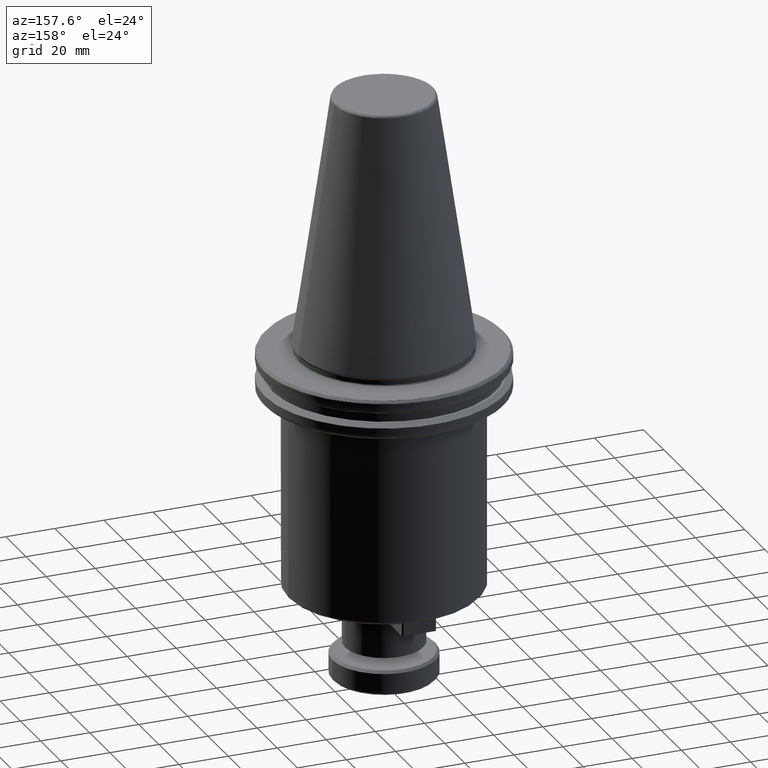
[diagram: clean part render]
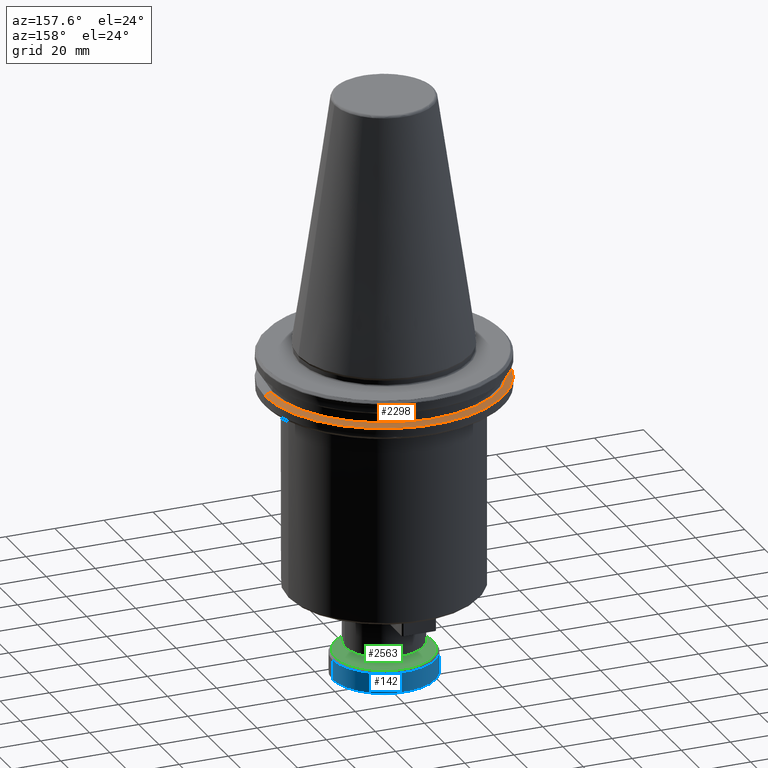
[diagram: same view with three faces highlighted in distinct colors, each labeled with its STEP entity id]
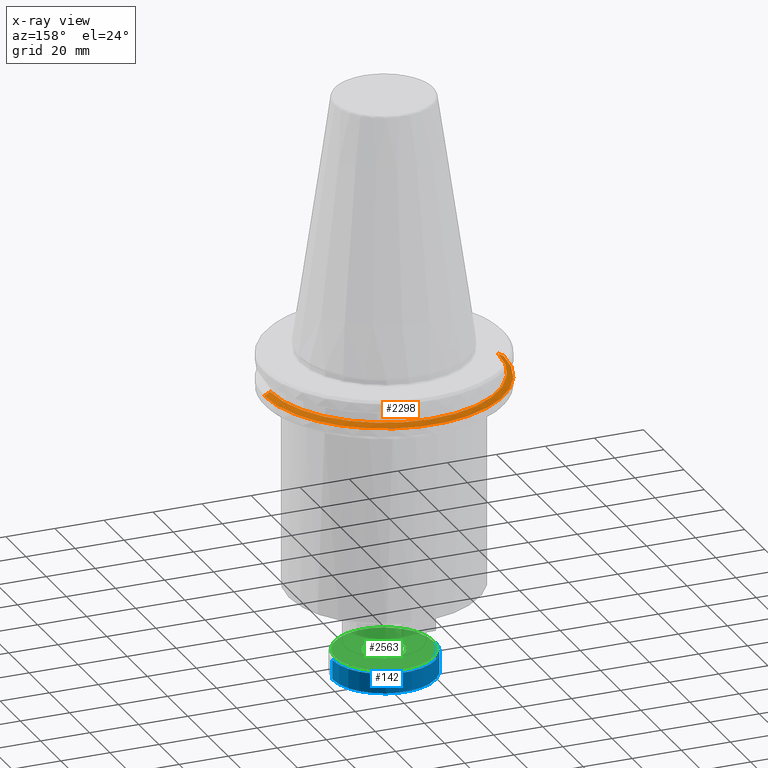
[diagram: x-ray of the same camera — body ghosted, the three highlighted faces saturated]
A machine part, auxiliary view with three faces highlighted in distinct colors.
The next image is the same camera in x-ray (body ghosted, the three faces saturated) — at least one of them is partly hidden behind the body in this view.
Their STEP definitions:

[orange] entity #2298 — the highlighted conical surface has half-angle 60 deg.
#62 = CARTESIAN_POINT ( 'NONE',  ( -48.75000000000002100, 0.0000000000000000000, -14.34759526419167100 ) ) ;
#271 = CIRCLE ( 'NONE', #2800, 46.41589653438085600 ) ;
#386 = EDGE_CURVE ( 'NONE', #3663, #939, #1995, .T. ) ;
#579 = CARTESIAN_POINT ( 'NONE',  ( 46.41589653438085600, 5.827230528940886900E-015, -13.00000000000001100 ) ) ;
#939 = VERTEX_POINT ( 'NONE', #2520 ) ;
#1048 = AXIS2_PLACEMENT_3D ( 'NONE', #1113, #3101, #1412 ) ;
#1113 = CARTESIAN_POINT ( 'NONE',  ( 0.0000000000000000000, 0.0000000000000000000, -14.34759526419166600 ) ) ;
#1370 = EDGE_CURVE ( 'NONE', #2086, #3663, #1920, .T. ) ;
#1412 = DIRECTION ( 'NONE',  ( -1.000000000000000000, 0.0000000000000000000, 0.0000000000000000000 ) ) ;
#1420 = LINE ( 'NONE', #62, #3084 ) ;
#1425 = DIRECTION ( 'NONE',  ( 0.0000000000000000000, 0.0000000000000000000, -1.000000000000000000 ) ) ;
#1613 = DIRECTION ( 'NONE',  ( -0.8660254037844392600, 0.0000000000000000000, -0.4999999999999989500 ) ) ;
#1634 = ORIENTED_EDGE ( 'NONE', *, *, #386, .T. ) ;
#1639 = VECTOR ( 'NONE', #4157, 1000.000000000000000 ) ;
#1759 = VERTEX_POINT ( 'NONE', #3431 ) ;
#1920 = LINE ( 'NONE', #2132, #1639 ) ;
#1995 = CIRCLE ( 'NONE', #1048, 48.75000000000001400 ) ;
#2086 = VERTEX_POINT ( 'NONE', #579 ) ;
#2099 = ORIENTED_EDGE ( 'NONE', *, *, #3172, .T. ) ;
#2132 = CARTESIAN_POINT ( 'NONE',  ( 48.75000000000002100, 5.970153145843349500E-015, -14.34759526419167100 ) ) ;
#2298 = ADVANCED_FACE ( 'NONE', ( #3999 ), #2799, .T. ) ;
#2361 = ORIENTED_EDGE ( 'NONE', *, *, #2600, .F. ) ;
#2434 = CARTESIAN_POINT ( 'NONE',  ( 0.0000000000000000000, 0.0000000000000000000, -14.34759526419167100 ) ) ;
#2520 = CARTESIAN_POINT ( 'NONE',  ( -48.75000000000001400, 5.970153145843347900E-015, -14.34759526419166600 ) ) ;
#2600 = EDGE_CURVE ( 'NONE', #1759, #939, #1420, .T. ) ;
#2799 = CONICAL_SURFACE ( 'NONE', #4145, 48.75000000000002100, 1.047197551196599000 ) ;
#2800 = AXIS2_PLACEMENT_3D ( 'NONE', #3535, #1425, #3857 ) ;
#3084 = VECTOR ( 'NONE', #1613, 1000.000000000000000 ) ;
#3101 = DIRECTION ( 'NONE',  ( -0.0000000000000000000, -0.0000000000000000000, 1.000000000000000000 ) ) ;
#3172 = EDGE_CURVE ( 'NONE', #1759, #2086, #271, .T. ) ;
#3431 = CARTESIAN_POINT ( 'NONE',  ( -46.41589653438085600, 0.0000000000000000000, -13.00000000000001100 ) ) ;
#3535 = CARTESIAN_POINT ( 'NONE',  ( 0.0000000000000000000, 0.0000000000000000000, -13.00000000000001100 ) ) ;
#3549 = DIRECTION ( 'NONE',  ( -1.000000000000000000, 0.0000000000000000000, 0.0000000000000000000 ) ) ;
#3624 = DIRECTION ( 'NONE',  ( 0.0000000000000000000, 0.0000000000000000000, -1.000000000000000000 ) ) ;
#3663 = VERTEX_POINT ( 'NONE', #4294 ) ;
#3857 = DIRECTION ( 'NONE',  ( -1.000000000000000000, 0.0000000000000000000, 0.0000000000000000000 ) ) ;
#3999 = FACE_OUTER_BOUND ( 'NONE', #4062, .T. ) ;
#4062 = EDGE_LOOP ( 'NONE', ( #2099, #4318, #1634, #2361 ) ) ;
#4145 = AXIS2_PLACEMENT_3D ( 'NONE', #2434, #3624, #3549 ) ;
#4157 = DIRECTION ( 'NONE',  ( 0.8660254037844392600, 1.060575238724907700E-016, -0.4999999999999989500 ) ) ;
#4294 = CARTESIAN_POINT ( 'NONE',  ( 48.75000000000001400, 0.0000000000000000000, -14.34759526419166600 ) ) ;
#4318 = ORIENTED_EDGE ( 'NONE', *, *, #1370, .T. ) ;

[blue] entity #142 — the highlighted cylindrical surface (partial cylindrical patch) has radius 21 mm, axis along (0, 0, 1).
#51 = CARTESIAN_POINT ( 'NONE',  ( 20.99999999999999600, 0.0000000000000000000, 0.0000000000000000000 ) ) ;
#139 = ORIENTED_EDGE ( 'NONE', *, *, #923, .F. ) ;
#142 = ADVANCED_FACE ( 'NONE', ( #240 ), #728, .T. ) ;
#186 = LINE ( 'NONE', #2511, #193 ) ;
#193 = VECTOR ( 'NONE', #4218, 1000.000000000000000 ) ;
#232 = CARTESIAN_POINT ( 'NONE',  ( 0.0000000000000000000, 0.0000000000000000000, -128.0000000000000000 ) ) ;
#240 = FACE_OUTER_BOUND ( 'NONE', #4266, .T. ) ;
#331 = DIRECTION ( 'NONE',  ( 0.0000000000000000000, 0.0000000000000000000, 1.000000000000000000 ) ) ;
#339 = ORIENTED_EDGE ( 'NONE', *, *, #2412, .F. ) ;
#481 = VERTEX_POINT ( 'NONE', #3142 ) ;
#503 = EDGE_CURVE ( 'NONE', #481, #663, #186, .T. ) ;
#542 = DIRECTION ( 'NONE',  ( -1.000000000000000000, 0.0000000000000000000, 0.0000000000000000000 ) ) ;
#663 = VERTEX_POINT ( 'NONE', #1547 ) ;
#674 = VERTEX_POINT ( 'NONE', #3969 ) ;
#728 = CYLINDRICAL_SURFACE ( 'NONE', #1823, 20.99999999999999600 ) ;
#836 = LINE ( 'NONE', #51, #937 ) ;
#870 = CARTESIAN_POINT ( 'NONE',  ( 21.00000000000000000, 0.0000000000000000000, -128.0000000000000000 ) ) ;
#923 = EDGE_CURVE ( 'NONE', #674, #2599, #836, .T. ) ;
#937 = VECTOR ( 'NONE', #2495, 1000.000000000000000 ) ;
#1024 = DIRECTION ( 'NONE',  ( 1.000000000000000000, 0.0000000000000000000, 0.0000000000000000000 ) ) ;
#1129 = DIRECTION ( 'NONE',  ( -0.0000000000000000000, -0.0000000000000000000, 1.000000000000000000 ) ) ;
#1507 = DIRECTION ( 'NONE',  ( 0.0000000000000000000, 0.0000000000000000000, 1.000000000000000000 ) ) ;
#1516 = CARTESIAN_POINT ( 'NONE',  ( 0.0000000000000000000, 0.0000000000000000000, 0.0000000000000000000 ) ) ;
#1547 = CARTESIAN_POINT ( 'NONE',  ( -21.00000000000000000, 2.571758278209441700E-015, -128.0000000000000000 ) ) ;
#1770 = AXIS2_PLACEMENT_3D ( 'NONE', #232, #1129, #542 ) ;
#1823 = AXIS2_PLACEMENT_3D ( 'NONE', #1516, #1507, #1024 ) ;
#2412 = EDGE_CURVE ( 'NONE', #2599, #663, #3698, .T. ) ;
#2417 = CARTESIAN_POINT ( 'NONE',  ( 0.0000000000000000000, 0.0000000000000000000, -136.0000000000000000 ) ) ;
#2495 = DIRECTION ( 'NONE',  ( 0.0000000000000000000, 0.0000000000000000000, 1.000000000000000000 ) ) ;
#2511 = CARTESIAN_POINT ( 'NONE',  ( -20.99999999999999600, 2.571758278209441300E-015, 0.0000000000000000000 ) ) ;
#2599 = VERTEX_POINT ( 'NONE', #870 ) ;
#2794 = DIRECTION ( 'NONE',  ( 1.000000000000000000, 0.0000000000000000000, 0.0000000000000000000 ) ) ;
#2995 = EDGE_CURVE ( 'NONE', #674, #481, #3466, .T. ) ;
#3142 = CARTESIAN_POINT ( 'NONE',  ( -20.99999999999999600, 2.571758278209441300E-015, -136.0000000000000000 ) ) ;
#3466 = CIRCLE ( 'NONE', #4422, 20.99999999999999600 ) ;
#3698 = CIRCLE ( 'NONE', #1770, 21.00000000000000400 ) ;
#3969 = CARTESIAN_POINT ( 'NONE',  ( 20.99999999999999600, 0.0000000000000000000, -136.0000000000000000 ) ) ;
#3981 = ORIENTED_EDGE ( 'NONE', *, *, #503, .T. ) ;
#4105 = ORIENTED_EDGE ( 'NONE', *, *, #2995, .T. ) ;
#4218 = DIRECTION ( 'NONE',  ( 0.0000000000000000000, 0.0000000000000000000, 1.000000000000000000 ) ) ;
#4266 = EDGE_LOOP ( 'NONE', ( #4105, #3981, #339, #139 ) ) ;
#4422 = AXIS2_PLACEMENT_3D ( 'NONE', #2417, #331, #2794 ) ;

[green] entity #2563 — the highlighted planar face has unit normal (0, 0, 1).
#2 = DIRECTION ( 'NONE',  ( 0.0000000000000000000, 0.0000000000000000000, 1.000000000000000000 ) ) ;
#70 = CARTESIAN_POINT ( 'NONE',  ( -8.500000000000000000, 1.318459257955872900E-015, -127.0000000000000000 ) ) ;
#79 = ORIENTED_EDGE ( 'NONE', *, *, #1700, .T. ) ;
#247 = DIRECTION ( 'NONE',  ( -0.0000000000000000000, -0.0000000000000000000, 1.000000000000000000 ) ) ;
#268 = CARTESIAN_POINT ( 'NONE',  ( -7.928379597049149300, 3.064629149131560500, -126.9999999999999700 ) ) ;
#278 = CARTESIAN_POINT ( 'NONE',  ( -4.893998744694945600, 6.950149218417778700, -126.9999999999999700 ) ) ;
#294 = CARTESIAN_POINT ( 'NONE',  ( -1.783187936033711100, 8.311361685090908200, -127.0000000000000000 ) ) ;
#311 = CARTESIAN_POINT ( 'NONE',  ( 1.817580703122244000, 8.307983328475952300, -127.0000000000000300 ) ) ;
#313 = PLANE ( 'NONE',  #4293 ) ;
#326 = CARTESIAN_POINT ( 'NONE',  ( 5.142155221134818700, 6.793583944551599500, -127.0000000000000300 ) ) ;
#335 = CARTESIAN_POINT ( 'NONE',  ( 7.876547097709166500, 3.195507051172989500, -126.9999999999999700 ) ) ;
#412 = DIRECTION ( 'NONE',  ( -0.0000000000000000000, -0.0000000000000000000, 1.000000000000000000 ) ) ;
#426 = CARTESIAN_POINT ( 'NONE',  ( 0.0000000000000000000, 0.0000000000000000000, -127.0000000000000000 ) ) ;
#476 = EDGE_LOOP ( 'NONE', ( #1642, #79 ) ) ;
#528 = EDGE_LOOP ( 'NONE', ( #1365, #1480 ) ) ;
#545 = DIRECTION ( 'NONE',  ( 1.000000000000000000, 0.0000000000000000000, -0.0000000000000000000 ) ) ;
#607 = CARTESIAN_POINT ( 'NONE',  ( -7.797549277625415200, 3.395722105694082500, -127.0000000000000300 ) ) ;
#624 = CARTESIAN_POINT ( 'NONE',  ( -4.711348703082473200, 7.075186736936474000, -127.0000000000000000 ) ) ;
#641 = CARTESIAN_POINT ( 'NONE',  ( -1.614434768017713600, 8.345343225972254000, -127.0000000000000300 ) ) ;
#652 = CARTESIAN_POINT ( 'NONE',  ( 2.676814450621062000, 8.069614187851694700, -127.0000000000000300 ) ) ;
#668 = CARTESIAN_POINT ( 'NONE',  ( 6.217760564397650600, 5.803080985853581500, -126.9999999999999700 ) ) ;
#687 = CARTESIAN_POINT ( 'NONE',  ( 8.004622828340597400, 2.872663059698152800, -127.0000000000000000 ) ) ;
#723 = CIRCLE ( 'NONE', #2490, 20.00000000000000400 ) ;
#812 = CARTESIAN_POINT ( 'NONE',  ( 20.00000000000000400, 2.510525938252074500E-015, -127.0000000000000000 ) ) ;
#854 = CARTESIAN_POINT ( 'NONE',  ( 0.0000000000000000000, -8.500000000000000000, -127.0000000000000000 ) ) ;
#881 = DIRECTION ( 'NONE',  ( -1.000000000000000000, 0.0000000000000000000, 0.0000000000000000000 ) ) ;
#934 = CARTESIAN_POINT ( 'NONE',  ( 8.500000000000000000, 0.0000000000000000000, -127.0000000000000000 ) ) ;
#946 = CARTESIAN_POINT ( 'NONE',  ( -8.396897607291425200, 1.322720827863058700, -127.0000000000000600 ) ) ;
#964 = CARTESIAN_POINT ( 'NONE',  ( -7.378379923617629300, 4.224513483193470100, -127.0000000000000000 ) ) ;
#976 = CARTESIAN_POINT ( 'NONE',  ( -4.040512574550139600, 7.487979943522000200, -127.0000000000000300 ) ) ;
#989 = CARTESIAN_POINT ( 'NONE',  ( -1.035816813050116000, 8.452666083387255100, -127.0000000000000000 ) ) ;
#1007 = CARTESIAN_POINT ( 'NONE',  ( 3.000284323785150000, 7.952956208293382900, -126.9999999999999700 ) ) ;
#1025 = CARTESIAN_POINT ( 'NONE',  ( 6.823084891243332200, 5.072886587586666900, -127.0000000000000000 ) ) ;
#1036 = CARTESIAN_POINT ( 'NONE',  ( 8.259026333416413100, 2.018039557837220300, -127.0000000000000000 ) ) ;
#1062 = VERTEX_POINT ( 'NONE', #812 ) ;
#1231 = EDGE_CURVE ( 'NONE', #4002, #4167, #3369, .T. ) ;
#1282 = CARTESIAN_POINT ( 'NONE',  ( -8.369736224266045400, 1.482744684832950400, -127.0000000000000000 ) ) ;
#1292 = CARTESIAN_POINT ( 'NONE',  ( -7.192286245344806900, 4.530583542576851900, -126.9999999999999700 ) ) ;
#1308 = CARTESIAN_POINT ( 'NONE',  ( -3.361156064153943700, 7.807809836553510700, -127.0000000000000300 ) ) ;
#1321 = CARTESIAN_POINT ( 'NONE',  ( 0.2597743522040911200, 8.500016208201033800, -126.9999999999999700 ) ) ;
#1329 = CARTESIAN_POINT ( 'NONE',  ( -20.00000000000000400, 0.0000000000000000000, -127.0000000000000000 ) ) ;
#1333 = CARTESIAN_POINT ( 'NONE',  ( 3.095440396973776000, 7.916406969206263100, -127.0000000000000000 ) ) ;
#1345 = CARTESIAN_POINT ( 'NONE',  ( 7.033399776736766600, 4.773540549319459800, -127.0000000000000000 ) ) ;
#1365 = ORIENTED_EDGE ( 'NONE', *, *, #2426, .T. ) ;
#1367 = CARTESIAN_POINT ( 'NONE',  ( 8.331990669844216800, 1.682006765309884900, -127.0000000000000000 ) ) ;
#1480 = ORIENTED_EDGE ( 'NONE', *, *, #2764, .T. ) ;
#1566 = FACE_BOUND ( 'NONE', #476, .T. ) ;
#1603 = CARTESIAN_POINT ( 'NONE',  ( -8.482261953942609600, 0.6480941902355981100, -127.0000000000000000 ) ) ;
#1618 = CARTESIAN_POINT ( 'NONE',  ( -8.307983328476670000, 1.817580703120498200, -127.0000000000000300 ) ) ;
#1638 = CARTESIAN_POINT ( 'NONE',  ( -6.793583944550206900, 5.142155221136209600, -127.0000000000000000 ) ) ;
#1642 = ORIENTED_EDGE ( 'NONE', *, *, #1231, .T. ) ;
#1656 = CARTESIAN_POINT ( 'NONE',  ( -3.195507051173887000, 7.876547097708620300, -126.9999999999999700 ) ) ;
#1671 = CARTESIAN_POINT ( 'NONE',  ( 1.098185498087159700, 8.430547259539080700, -127.0000000000000000 ) ) ;
#1689 = CARTESIAN_POINT ( 'NONE',  ( 3.786219645568159800, 7.619718477363205600, -127.0000000000000000 ) ) ;
#1700 = EDGE_CURVE ( 'NONE', #4167, #4002, #2989, .T. ) ;
#1708 = CARTESIAN_POINT ( 'NONE',  ( 7.271562279049070400, 4.411019706534952800, -127.0000000000000300 ) ) ;
#1722 = CARTESIAN_POINT ( 'NONE',  ( 8.352182949521752800, 1.578626225734799600, -127.0000000000000000 ) ) ;
#1993 = CARTESIAN_POINT ( 'NONE',  ( -8.069614187852636200, 2.676814450618771400, -127.0000000000000000 ) ) ;
#2006 = CARTESIAN_POINT ( 'NONE',  ( -5.803080985854006900, 6.217760564397228700, -126.9999999999999700 ) ) ;
#2020 = CARTESIAN_POINT ( 'NONE',  ( -2.872663059703036500, 8.004622828339442700, -127.0000000000000300 ) ) ;
#2043 = CARTESIAN_POINT ( 'NONE',  ( 1.418714265012801700, 8.380829974019571100, -127.0000000000000000 ) ) ;
#2057 = CARTESIAN_POINT ( 'NONE',  ( 4.408649422410217500, 7.267691410562047600, -127.0000000000000000 ) ) ;
#2070 = CARTESIAN_POINT ( 'NONE',  ( 7.706809493146005600, 3.590557665654126500, -127.0000000000000000 ) ) ;
#2092 = CARTESIAN_POINT ( 'NONE',  ( 8.499999999999996400, 0.5200794799637127300, -126.9999999999999400 ) ) ;
#2326 = CARTESIAN_POINT ( 'NONE',  ( 0.0000000000000000000, 0.0000000000000000000, -127.0000000000000000 ) ) ;
#2333 = CARTESIAN_POINT ( 'NONE',  ( -8.500000000000003600, 0.2598619697415395200, -127.0000000000000300 ) ) ;
#2346 = CARTESIAN_POINT ( 'NONE',  ( -7.952956208293710600, 3.000284323784346200, -127.0000000000000000 ) ) ;
#2366 = CARTESIAN_POINT ( 'NONE',  ( -5.072886587587222900, 6.823084891242778800, -127.0000000000000000 ) ) ;
#2381 = CARTESIAN_POINT ( 'NONE',  ( -2.018039557843631600, 8.259026333414899700, -127.0000000000000300 ) ) ;
#2394 = CARTESIAN_POINT ( 'NONE',  ( 1.512824100800854500, 8.364359669423997400, -126.9999999999999700 ) ) ;
#2404 = CARTESIAN_POINT ( 'NONE',  ( 4.589923864103573300, 7.154571582959405900, -127.0000000000000300 ) ) ;
#2426 = EDGE_CURVE ( 'NONE', #2946, #1062, #723, .T. ) ;
#2428 = CARTESIAN_POINT ( 'NONE',  ( 7.849292605573340100, 3.261893060565900900, -126.9999999999999700 ) ) ;
#2490 = AXIS2_PLACEMENT_3D ( 'NONE', #426, #412, #881 ) ;
#2563 = ADVANCED_FACE ( 'NONE', ( #1566, #3224 ), #313, .T. ) ;
#2693 = DIRECTION ( 'NONE',  ( -1.000000000000000000, 0.0000000000000000000, 0.0000000000000000000 ) ) ;
#2700 = CARTESIAN_POINT ( 'NONE',  ( -8.500000000000000000, 1.318459257955872900E-015, -127.0000000000000000 ) ) ;
#2722 = CARTESIAN_POINT ( 'NONE',  ( -7.916406969206314600, 3.095440396973649500, -127.0000000000000000 ) ) ;
#2737 = CARTESIAN_POINT ( 'NONE',  ( -4.773540549319656100, 7.033399776736569500, -126.9999999999999700 ) ) ;
#2749 = CARTESIAN_POINT ( 'NONE',  ( -1.682006765312136200, 8.331990669843691000, -126.9999999999999700 ) ) ;
#2764 = EDGE_CURVE ( 'NONE', #1062, #2946, #3278, .T. ) ;
#2768 = CARTESIAN_POINT ( 'NONE',  ( 2.218516657058087600, 8.213537217113476200, -127.0000000000000000 ) ) ;
#2787 = CARTESIAN_POINT ( 'NONE',  ( 5.595701791461660700, 6.425060948549798900, -127.0000000000000000 ) ) ;
#2798 = CARTESIAN_POINT ( 'NONE',  ( 7.890522775366915400, 3.160822777723137500, -126.9999999999999700 ) ) ;
#2946 = VERTEX_POINT ( 'NONE', #1329 ) ;
#2989 = B_SPLINE_CURVE_WITH_KNOTS ( 'NONE', 3,
 ( #4223, #4209, #4198, #4192, #4184, #4175, #4169, #4155, #4147, #4143, #4135, #4133, #4126, #4119, #4109, #4099, #4091, #4087, #4080, #4076, #4069, #4050, #4046, #4037, #4027, #4015, #3997, #3994, #3989, #3985, #3976, #3967, #3959, #3952, #3948, #3941, #3937, #3931, #3926, #3918, #3912, #3903, #3901, #3897, #3893, #3890, #3878, #3855, #3848, #3844, #3834, #3827, #3813, #3809, #3803, #3798, #3791, #3785, #3777, #3770, #3759, #3752, #3742, #3739, #3730, #3704, #3697, #3693, #3688, #3683, #3675, #3666, #3651, #3647, #3642, #3616, #3610, #3605, #3600, #3596, #3592, #3587, #3584, #3578, #3573, #3565, #3558, #3552, #3547, #3546 ),
 .UNSPECIFIED., .F., .F.,
 ( 4, 1, 1, 1, 2, 2, 1, 1, 1, 2, 2, 1, 1, 2, 2, 2, 1, 1, 2, 2, 1, 1, 1, 2, 2, 1, 1, 1, 2, 2, 2, 1, 1, 1, 2, 2, 1, 1, 1, 2, 2, 1, 1, 2, 2, 2, 1, 1, 2, 2, 1, 1, 1, 2, 2, 1, 1, 1, 2, 2, 4 ),
 ( 0.0000000000000000000, 0.03124999999999997200, 0.04687499999999995800, 0.05468749999999993800, 0.05859374999999991700, 0.06249999999999988900, 0.09374999999999979200, 0.1093749999999997600, 0.1171874999999997100, 0.1210937499999996300, 0.1249999999999995600, 0.1562499999999987800, 0.1718749999999983900, 0.1796874999999981100, 0.1874999999999978600, 0.2499999999999961100, 0.2812499999999953400, 0.2968749999999948900, 0.3046874999999947300, 0.3124999999999945600, 0.3437499999999940000, 0.3593749999999936200, 0.3671874999999934500, 0.3710937499999933400, 0.3749999999999932300, 0.4062499999999927300, 0.4218749999999924500, 0.4296874999999923400, 0.4335937499999922800, 0.4374999999999922300, 0.4999999999999920600, 0.5312499999999920100, 0.5468749999999920100, 0.5546874999999920100, 0.5585937499999920100, 0.5624999999999920100, 0.5937499999999920100, 0.6093749999999920100, 0.6171874999999920100, 0.6210937499999921200, 0.6249999999999922300, 0.6562499999999931200, 0.6718749999999935600, 0.6796874999999937800, 0.6874999999999940000, 0.7499999999999954500, 0.7812499999999962300, 0.7968749999999966700, 0.8046874999999968900, 0.8124999999999971100, 0.8437499999999978900, 0.8593749999999983300, 0.8671874999999985600, 0.8710937499999985600, 0.8749999999999985600, 0.9062499999999991100, 0.9218749999999993300, 0.9296874999999994400, 0.9335937499999994400, 0.9374999999999993300, 1.000000000000000000 ),
 .UNSPECIFIED. ) ;
#3069 = CARTESIAN_POINT ( 'NONE',  ( -8.430525986275226200, 1.098300496105060400, -127.0000000000000300 ) ) ;
#3079 = CARTESIAN_POINT ( 'NONE',  ( -7.619718477362460400, 3.786219645569930000, -127.0000000000000000 ) ) ;
#3089 = CARTESIAN_POINT ( 'NONE',  ( -4.411019706538654700, 7.271562279046792200, -127.0000000000000000 ) ) ;
#3106 = CARTESIAN_POINT ( 'NONE',  ( -1.578615266281549800, 8.352184978300488900, -127.0000000000000000 ) ) ;
#3120 = CARTESIAN_POINT ( 'NONE',  ( 2.903598142562005400, 7.989218698386087800, -127.0000000000000300 ) ) ;
#3123 = AXIS2_PLACEMENT_3D ( 'NONE', #2326, #247, #2693 ) ;
#3131 = CARTESIAN_POINT ( 'NONE',  ( 6.511282033290760800, 5.477695403140533200, -127.0000000000000000 ) ) ;
#3150 = CARTESIAN_POINT ( 'NONE',  ( 8.137551414386829100, 2.482791695293238700, -127.0000000000000000 ) ) ;
#3224 = FACE_OUTER_BOUND ( 'NONE', #528, .T. ) ;
#3278 = CIRCLE ( 'NONE', #3123, 20.00000000000000400 ) ;
#3369 = B_SPLINE_CURVE_WITH_KNOTS ( 'NONE', 3,
 ( #2700, #2333, #1603, #3069, #946, #3392, #1282, #3725, #1618, #4035, #1993, #4367, #2346, #268, #2722, #607, #3079, #964, #3410, #1292, #3740, #1638, #4047, #2006, #4383, #2366, #278, #2737, #624, #3089, #976, #3428, #1308, #3755, #1656, #4063, #2020, #4392, #2381, #294, #2749, #641, #3106, #989, #3437, #1321, #3773, #1671, #4077, #2043, #4404, #2394, #311, #2768, #652, #3120, #1007, #3450, #1333, #3786, #1689, #4089, #2057, #4418, #2404, #326, #2787, #668, #3131, #1025, #3470, #1345, #3800, #1708, #4103, #2070, #4434, #2428, #335, #2798, #687, #3150, #1036, #3487, #1367, #3811, #1722, #4121, #2092, #4445 ),
 .UNSPECIFIED., .F., .F.,
 ( 4, 1, 1, 1, 2, 2, 1, 1, 1, 2, 2, 1, 1, 2, 2, 2, 1, 1, 2, 2, 1, 1, 1, 2, 2, 1, 1, 1, 2, 2, 2, 1, 1, 1, 2, 2, 1, 1, 1, 2, 2, 1, 1, 2, 2, 2, 1, 1, 2, 2, 1, 1, 1, 2, 2, 1, 1, 1, 2, 2, 4 ),
 ( 0.0000000000000000000, 0.03125000000000040200, 0.04687500000000061800, 0.05468750000000072900, 0.05859375000000077000, 0.06250000000000080500, 0.09375000000000105500, 0.1093750000000011900, 0.1171875000000012600, 0.1210937500000012900, 0.1250000000000013300, 0.1562500000000014700, 0.1718750000000016100, 0.1796875000000016900, 0.1875000000000018000, 0.2500000000000023300, 0.2812500000000026100, 0.2968750000000027800, 0.3046875000000028900, 0.3125000000000029400, 0.3437500000000033900, 0.3593750000000035000, 0.3671875000000035500, 0.3710937500000036100, 0.3750000000000036600, 0.4062500000000038900, 0.4218750000000040000, 0.4296875000000040500, 0.4335937500000041100, 0.4375000000000041100, 0.5000000000000045500, 0.5312500000000048800, 0.5468750000000048800, 0.5546875000000048800, 0.5585937500000050000, 0.5625000000000050000, 0.5937500000000052200, 0.6093750000000053300, 0.6171875000000054400, 0.6210937500000054400, 0.6250000000000054400, 0.6562500000000053300, 0.6718750000000052200, 0.6796875000000051100, 0.6875000000000050000, 0.7500000000000044400, 0.7812500000000042200, 0.7968750000000038900, 0.8046875000000037700, 0.8125000000000036600, 0.8437500000000034400, 0.8593750000000033300, 0.8671875000000033300, 0.8710937500000032200, 0.8750000000000031100, 0.9062500000000024400, 0.9218750000000021100, 0.9296875000000018900, 0.9335937500000017800, 0.9375000000000017800, 1.000000000000000000 ),
 .UNSPECIFIED. ) ;
#3392 = CARTESIAN_POINT ( 'NONE',  ( -8.380822503051911500, 1.418754651221471900, -126.9999999999999700 ) ) ;
#3410 = CARTESIAN_POINT ( 'NONE',  ( -7.267691410561692300, 4.408649422411068400, -127.0000000000000300 ) ) ;
#3428 = CARTESIAN_POINT ( 'NONE',  ( -3.590557665658989300, 7.706809493143023100, -127.0000000000000300 ) ) ;
#3437 = CARTESIAN_POINT ( 'NONE',  ( -0.5195487044081802400, 8.499967583597934300, -127.0000000000000000 ) ) ;
#3450 = CARTESIAN_POINT ( 'NONE',  ( 3.064629149131983300, 7.928379597048977000, -126.9999999999999700 ) ) ;
#3470 = CARTESIAN_POINT ( 'NONE',  ( 6.950149218418135700, 4.893998744694593000, -127.0000000000000000 ) ) ;
#3487 = CARTESIAN_POINT ( 'NONE',  ( 8.311361685091791100, 1.783187936029971800, -127.0000000000000000 ) ) ;
#3546 = CARTESIAN_POINT ( 'NONE',  ( -8.500000000000000000, 1.318459257955872900E-015, -127.0000000000000000 ) ) ;
#3547 = CARTESIAN_POINT ( 'NONE',  ( -8.500000000000001800, -0.5200794799580728000, -127.0000000000000000 ) ) ;
#3552 = CARTESIAN_POINT ( 'NONE',  ( -8.452698543846960200, -1.035641461792486300, -127.0000000000000000 ) ) ;
#3558 = CARTESIAN_POINT ( 'NONE',  ( -8.352182949521752800, -1.578626225735150900, -126.9999999999999700 ) ) ;
#3565 = CARTESIAN_POINT ( 'NONE',  ( -8.345343225972836600, -1.614434768015597500, -127.0000000000000300 ) ) ;
#3573 = CARTESIAN_POINT ( 'NONE',  ( -8.331990669844801200, -1.682006765308108300, -127.0000000000000000 ) ) ;
#3578 = CARTESIAN_POINT ( 'NONE',  ( -8.311361685092755600, -1.783187936027021300, -127.0000000000000300 ) ) ;
#3584 = CARTESIAN_POINT ( 'NONE',  ( -8.259026333418079300, -2.018039557832159900, -127.0000000000000000 ) ) ;
#3587 = CARTESIAN_POINT ( 'NONE',  ( -8.137551414389044200, -2.482791695286490800, -127.0000000000000000 ) ) ;
#3592 = CARTESIAN_POINT ( 'NONE',  ( -8.004622828341863900, -2.872663059694295900, -127.0000000000000300 ) ) ;
#3596 = CARTESIAN_POINT ( 'NONE',  ( -7.890522775366760800, -3.160822777723620600, -127.0000000000000000 ) ) ;
#3600 = CARTESIAN_POINT ( 'NONE',  ( -7.876547097709195800, -3.195507051173089000, -127.0000000000000000 ) ) ;
#3605 = CARTESIAN_POINT ( 'NONE',  ( -7.849292605573390700, -3.261893060566090100, -126.9999999999999700 ) ) ;
#3610 = CARTESIAN_POINT ( 'NONE',  ( -7.807809836555336800, -3.361156064151420000, -126.9999999999999700 ) ) ;
#3616 = CARTESIAN_POINT ( 'NONE',  ( -7.706809493146152200, -3.590557665654660300, -127.0000000000000000 ) ) ;
#3642 = CARTESIAN_POINT ( 'NONE',  ( -7.487979943526180900, -4.040512574544366400, -127.0000000000000000 ) ) ;
#3647 = CARTESIAN_POINT ( 'NONE',  ( -7.271562279049179600, -4.411019706535359600, -126.9999999999999700 ) ) ;
#3651 = CARTESIAN_POINT ( 'NONE',  ( -7.075186736935877200, -4.711348703083299200, -127.0000000000000300 ) ) ;
#3666 = CARTESIAN_POINT ( 'NONE',  ( -7.033399776735830500, -4.773540549320621600, -127.0000000000000300 ) ) ;
#3675 = CARTESIAN_POINT ( 'NONE',  ( -6.950149218416448200, -4.893998744696683700, -127.0000000000000300 ) ) ;
#3683 = CARTESIAN_POINT ( 'NONE',  ( -6.823084891240698700, -5.072886587589921200, -127.0000000000000000 ) ) ;
#3688 = CARTESIAN_POINT ( 'NONE',  ( -6.511282033287246300, -5.477695403144871900, -127.0000000000000000 ) ) ;
#3693 = CARTESIAN_POINT ( 'NONE',  ( -6.217760564395646000, -5.803080985856059500, -126.9999999999999400 ) ) ;
#3697 = CARTESIAN_POINT ( 'NONE',  ( -5.595701791465681500, -6.425060948544843800, -127.0000000000000300 ) ) ;
#3704 = CARTESIAN_POINT ( 'NONE',  ( -5.142155221135281500, -6.793583944550191800, -127.0000000000000000 ) ) ;
#3725 = CARTESIAN_POINT ( 'NONE',  ( -8.364359669423908600, 1.512824100801075400, -127.0000000000000000 ) ) ;
#3730 = CARTESIAN_POINT ( 'NONE',  ( -4.589923864103515600, -7.154571582959581700, -127.0000000000000000 ) ) ;
#3739 = CARTESIAN_POINT ( 'NONE',  ( -4.530583542577323500, -7.192286245344644300, -127.0000000000000900 ) ) ;
#3740 = CARTESIAN_POINT ( 'NONE',  ( -7.154571582959575500, 4.589923864103397500, -126.9999999999999700 ) ) ;
#3742 = CARTESIAN_POINT ( 'NONE',  ( -4.408649422411913000, -7.267691410561395700, -127.0000000000000300 ) ) ;
#3752 = CARTESIAN_POINT ( 'NONE',  ( -4.224513483194785500, -7.378379923617172800, -127.0000000000000300 ) ) ;
#3755 = CARTESIAN_POINT ( 'NONE',  ( -3.261893060567608900, 7.849292605572287600, -126.9999999999999700 ) ) ;
#3759 = CARTESIAN_POINT ( 'NONE',  ( -3.786219645571683700, -7.619718477361852000, -127.0000000000000000 ) ) ;
#3770 = CARTESIAN_POINT ( 'NONE',  ( -3.395722105695088800, -7.797549277625065200, -127.0000000000000300 ) ) ;
#3773 = CARTESIAN_POINT ( 'NONE',  ( 0.6479408595450608700, 8.482290318294422700, -127.0000000000000300 ) ) ;
#3777 = CARTESIAN_POINT ( 'NONE',  ( -3.095440396973528200, -7.916406969206356300, -127.0000000000000300 ) ) ;
#3785 = CARTESIAN_POINT ( 'NONE',  ( -3.064629149131596900, -7.928379597049124400, -127.0000000000000300 ) ) ;
#3786 = CARTESIAN_POINT ( 'NONE',  ( 3.395722105693076600, 7.797549277625837900, -127.0000000000000300 ) ) ;
#3791 = CARTESIAN_POINT ( 'NONE',  ( -3.000284323784408800, -7.952956208293666200, -127.0000000000000300 ) ) ;
#3798 = CARTESIAN_POINT ( 'NONE',  ( -2.903598142560772200, -7.989218698386559400, -127.0000000000000000 ) ) ;
#3800 = CARTESIAN_POINT ( 'NONE',  ( 7.075186736935903800, 4.711348703083402300, -127.0000000000000000 ) ) ;
#3803 = CARTESIAN_POINT ( 'NONE',  ( -2.676814450618943300, -8.069614187852510100, -127.0000000000000000 ) ) ;
#3809 = CARTESIAN_POINT ( 'NONE',  ( -2.218516657055258800, -8.213537217114558000, -127.0000000000000000 ) ) ;
#3811 = CARTESIAN_POINT ( 'NONE',  ( 8.345343225972529300, 1.614434768016530500, -127.0000000000000000 ) ) ;
#3813 = CARTESIAN_POINT ( 'NONE',  ( -1.817580703120627900, -8.307983328476572300, -126.9999999999999700 ) ) ;
#3827 = CARTESIAN_POINT ( 'NONE',  ( -1.512824100801059400, -8.364359669423922800, -127.0000000000000000 ) ) ;
#3834 = CARTESIAN_POINT ( 'NONE',  ( -1.482723464959094600, -8.369740149689940600, -127.0000000000000300 ) ) ;
#3844 = CARTESIAN_POINT ( 'NONE',  ( -1.418714265009939800, -8.380829974019970800, -127.0000000000000000 ) ) ;
#3848 = CARTESIAN_POINT ( 'NONE',  ( -1.322653745681191800, -8.396910016695988700, -126.9999999999999700 ) ) ;
#3855 = CARTESIAN_POINT ( 'NONE',  ( -1.098185498079003300, -8.430547259540190900, -127.0000000000000000 ) ) ;
#3878 = CARTESIAN_POINT ( 'NONE',  ( -0.6479408595341882300, -8.482290318295906000, -127.0000000000000300 ) ) ;
#3890 = CARTESIAN_POINT ( 'NONE',  ( -0.2597743521978780300, -8.500016208201881100, -126.9999999999999700 ) ) ;
#3893 = CARTESIAN_POINT ( 'NONE',  ( 0.5195487043957486300, -8.499967583596234300, -127.0000000000000000 ) ) ;
#3897 = CARTESIAN_POINT ( 'NONE',  ( 1.035816813051431400, -8.452666083385551600, -127.0000000000000000 ) ) ;
#3901 = CARTESIAN_POINT ( 'NONE',  ( 1.578615266281467600, -8.352184978300588400, -127.0000000000000000 ) ) ;
#3903 = CARTESIAN_POINT ( 'NONE',  ( 1.614434768015474900, -8.345343225972852600, -127.0000000000000900 ) ) ;
#3912 = CARTESIAN_POINT ( 'NONE',  ( 1.682006765307875900, -8.331990669844827800, -127.0000000000000300 ) ) ;
#3918 = CARTESIAN_POINT ( 'NONE',  ( 1.783187936026633200, -8.311361685092803600, -127.0000000000000300 ) ) ;
#3926 = CARTESIAN_POINT ( 'NONE',  ( 2.018039557831497800, -8.259026333418164600, -127.0000000000000600 ) ) ;
#3931 = CARTESIAN_POINT ( 'NONE',  ( 2.482791695285611100, -8.137551414389152500, -127.0000000000000000 ) ) ;
#3937 = CARTESIAN_POINT ( 'NONE',  ( 2.872663059693793700, -8.004622828341919000, -127.0000000000000000 ) ) ;
#3941 = CARTESIAN_POINT ( 'NONE',  ( 3.160822777723687200, -7.890522775366752000, -127.0000000000000300 ) ) ;
#3948 = CARTESIAN_POINT ( 'NONE',  ( 3.195507051172955700, -7.876547097709281100, -127.0000000000000000 ) ) ;
#3952 = CARTESIAN_POINT ( 'NONE',  ( 3.261893060565836100, -7.849292605573555900, -127.0000000000000000 ) ) ;
#3959 = CARTESIAN_POINT ( 'NONE',  ( 3.361156064150995000, -7.807809836555613000, -127.0000000000000000 ) ) ;
#3967 = CARTESIAN_POINT ( 'NONE',  ( 3.590557665653934600, -7.706809493146625600, -127.0000000000000000 ) ) ;
#3976 = CARTESIAN_POINT ( 'NONE',  ( 4.040512574543396500, -7.487979943526811500, -127.0000000000000000 ) ) ;
#3985 = CARTESIAN_POINT ( 'NONE',  ( 4.411019706534802700, -7.271562279049543800, -126.9999999999999700 ) ) ;
#3989 = CARTESIAN_POINT ( 'NONE',  ( 4.711348703083437800, -7.075186736935787500, -127.0000000000000000 ) ) ;
#3994 = CARTESIAN_POINT ( 'NONE',  ( 4.773540549320940400, -7.033399776735619100, -127.0000000000000000 ) ) ;
#3997 = CARTESIAN_POINT ( 'NONE',  ( 4.893998744697256600, -6.950149218416068000, -127.0000000000000000 ) ) ;
#4002 = VERTEX_POINT ( 'NONE', #70 ) ;
#4015 = CARTESIAN_POINT ( 'NONE',  ( 5.072886587590818200, -6.823084891240115200, -127.0000000000000000 ) ) ;
#4027 = CARTESIAN_POINT ( 'NONE',  ( 5.477695403146064700, -6.511282033286466500, -127.0000000000000000 ) ) ;
#4035 = CARTESIAN_POINT ( 'NONE',  ( -8.213537217114728500, 2.218516657055031900, -127.0000000000000000 ) ) ;
#4037 = CARTESIAN_POINT ( 'NONE',  ( 5.803080985856743400, -6.217760564395201000, -127.0000000000000000 ) ) ;
#4046 = CARTESIAN_POINT ( 'NONE',  ( 6.425060948543477800, -5.595701791466567000, -126.9999999999999700 ) ) ;
#4047 = CARTESIAN_POINT ( 'NONE',  ( -6.425060948548955200, 5.595701791462508900, -126.9999999999999700 ) ) ;
#4050 = CARTESIAN_POINT ( 'NONE',  ( 6.793583944551083500, -5.142155221133914500, -126.9999999999999700 ) ) ;
#4063 = CARTESIAN_POINT ( 'NONE',  ( -3.160822777722527700, 7.890522775367061000, -126.9999999999999700 ) ) ;
#4069 = CARTESIAN_POINT ( 'NONE',  ( 7.154571582959468900, -4.589923864103686100, -127.0000000000000300 ) ) ;
#4076 = CARTESIAN_POINT ( 'NONE',  ( 7.192286245344697600, -4.530583542577234700, -126.9999999999999700 ) ) ;
#4077 = CARTESIAN_POINT ( 'NONE',  ( 1.322653745685949300, 8.396910016695333200, -127.0000000000000000 ) ) ;
#4080 = CARTESIAN_POINT ( 'NONE',  ( 7.267691410561496900, -4.408649422411756700, -126.9999999999999700 ) ) ;
#4087 = CARTESIAN_POINT ( 'NONE',  ( 7.378379923617330000, -4.224513483194539500, -127.0000000000000000 ) ) ;
#4089 = CARTESIAN_POINT ( 'NONE',  ( 4.224513483192146700, 7.378379923618188000, -127.0000000000000300 ) ) ;
#4091 = CARTESIAN_POINT ( 'NONE',  ( 7.619718477362067000, -3.786219645571358600, -127.0000000000000300 ) ) ;
#4099 = CARTESIAN_POINT ( 'NONE',  ( 7.797549277625184200, -3.395722105694900100, -127.0000000000000300 ) ) ;
#4103 = CARTESIAN_POINT ( 'NONE',  ( 7.487979943525985500, 4.040512574543657600, -127.0000000000000300 ) ) ;
#4109 = CARTESIAN_POINT ( 'NONE',  ( 7.916406969206341200, -3.095440396973550400, -127.0000000000000000 ) ) ;
#4119 = CARTESIAN_POINT ( 'NONE',  ( 7.928379597049124400, -3.064629149131553400, -127.0000000000000300 ) ) ;
#4121 = CARTESIAN_POINT ( 'NONE',  ( 8.452698543846962000, 1.035641461798116700, -126.9999999999999700 ) ) ;
#4126 = CARTESIAN_POINT ( 'NONE',  ( 7.952956208293676000, -3.000284323784332900, -127.0000000000000300 ) ) ;
#4133 = CARTESIAN_POINT ( 'NONE',  ( 7.989218698386575400, -2.903598142560641200, -127.0000000000000000 ) ) ;
#4135 = CARTESIAN_POINT ( 'NONE',  ( 8.069614187852538500, -2.676814450618722600, -127.0000000000000600 ) ) ;
#4143 = CARTESIAN_POINT ( 'NONE',  ( 8.213537217114593500, -2.218516657054965700, -127.0000000000000300 ) ) ;
#4147 = CARTESIAN_POINT ( 'NONE',  ( 8.307983328476588300, -1.817580703120457800, -127.0000000000000300 ) ) ;
#4155 = CARTESIAN_POINT ( 'NONE',  ( 8.364359669423917500, -1.512824100801078800, -127.0000000000000000 ) ) ;
#4167 = VERTEX_POINT ( 'NONE', #934 ) ;
#4169 = CARTESIAN_POINT ( 'NONE',  ( 8.369736224266041800, -1.482744684833051700, -127.0000000000000000 ) ) ;
#4175 = CARTESIAN_POINT ( 'NONE',  ( 8.380822503051913200, -1.418754651221667100, -127.0000000000000300 ) ) ;
#4184 = CARTESIAN_POINT ( 'NONE',  ( 8.396897607291419900, -1.322720827863384400, -127.0000000000000000 ) ) ;
#4192 = CARTESIAN_POINT ( 'NONE',  ( 8.430525986275226200, -1.098300496105619300, -127.0000000000000000 ) ) ;
#4198 = CARTESIAN_POINT ( 'NONE',  ( 8.482261953942609600, -0.6480941902363408500, -127.0000000000000000 ) ) ;
#4209 = CARTESIAN_POINT ( 'NONE',  ( 8.500000000000003600, -0.2598619697419642400, -127.0000000000000000 ) ) ;
#4223 = CARTESIAN_POINT ( 'NONE',  ( 8.500000000000000000, 0.0000000000000000000, -127.0000000000000000 ) ) ;
#4293 = AXIS2_PLACEMENT_3D ( 'NONE', #854, #2, #545 ) ;
#4367 = CARTESIAN_POINT ( 'NONE',  ( -7.989218698386632200, 2.903598142560668300, -127.0000000000000000 ) ) ;
#4383 = CARTESIAN_POINT ( 'NONE',  ( -5.477695403141276600, 6.511282033290020100, -127.0000000000000300 ) ) ;
#4392 = CARTESIAN_POINT ( 'NONE',  ( -2.482791695301787900, 8.137551414384809300, -127.0000000000000000 ) ) ;
#4404 = CARTESIAN_POINT ( 'NONE',  ( 1.482723464960597600, 8.369740149689725700, -127.0000000000000000 ) ) ;
#4418 = CARTESIAN_POINT ( 'NONE',  ( 4.530583542576381200, 7.192286245345003200, -127.0000000000000300 ) ) ;
#4434 = CARTESIAN_POINT ( 'NONE',  ( 7.807809836555254200, 3.361156064151106000, -127.0000000000000000 ) ) ;
#4445 = CARTESIAN_POINT ( 'NONE',  ( 8.500000000000000000, 0.0000000000000000000, -127.0000000000000000 ) ) ;